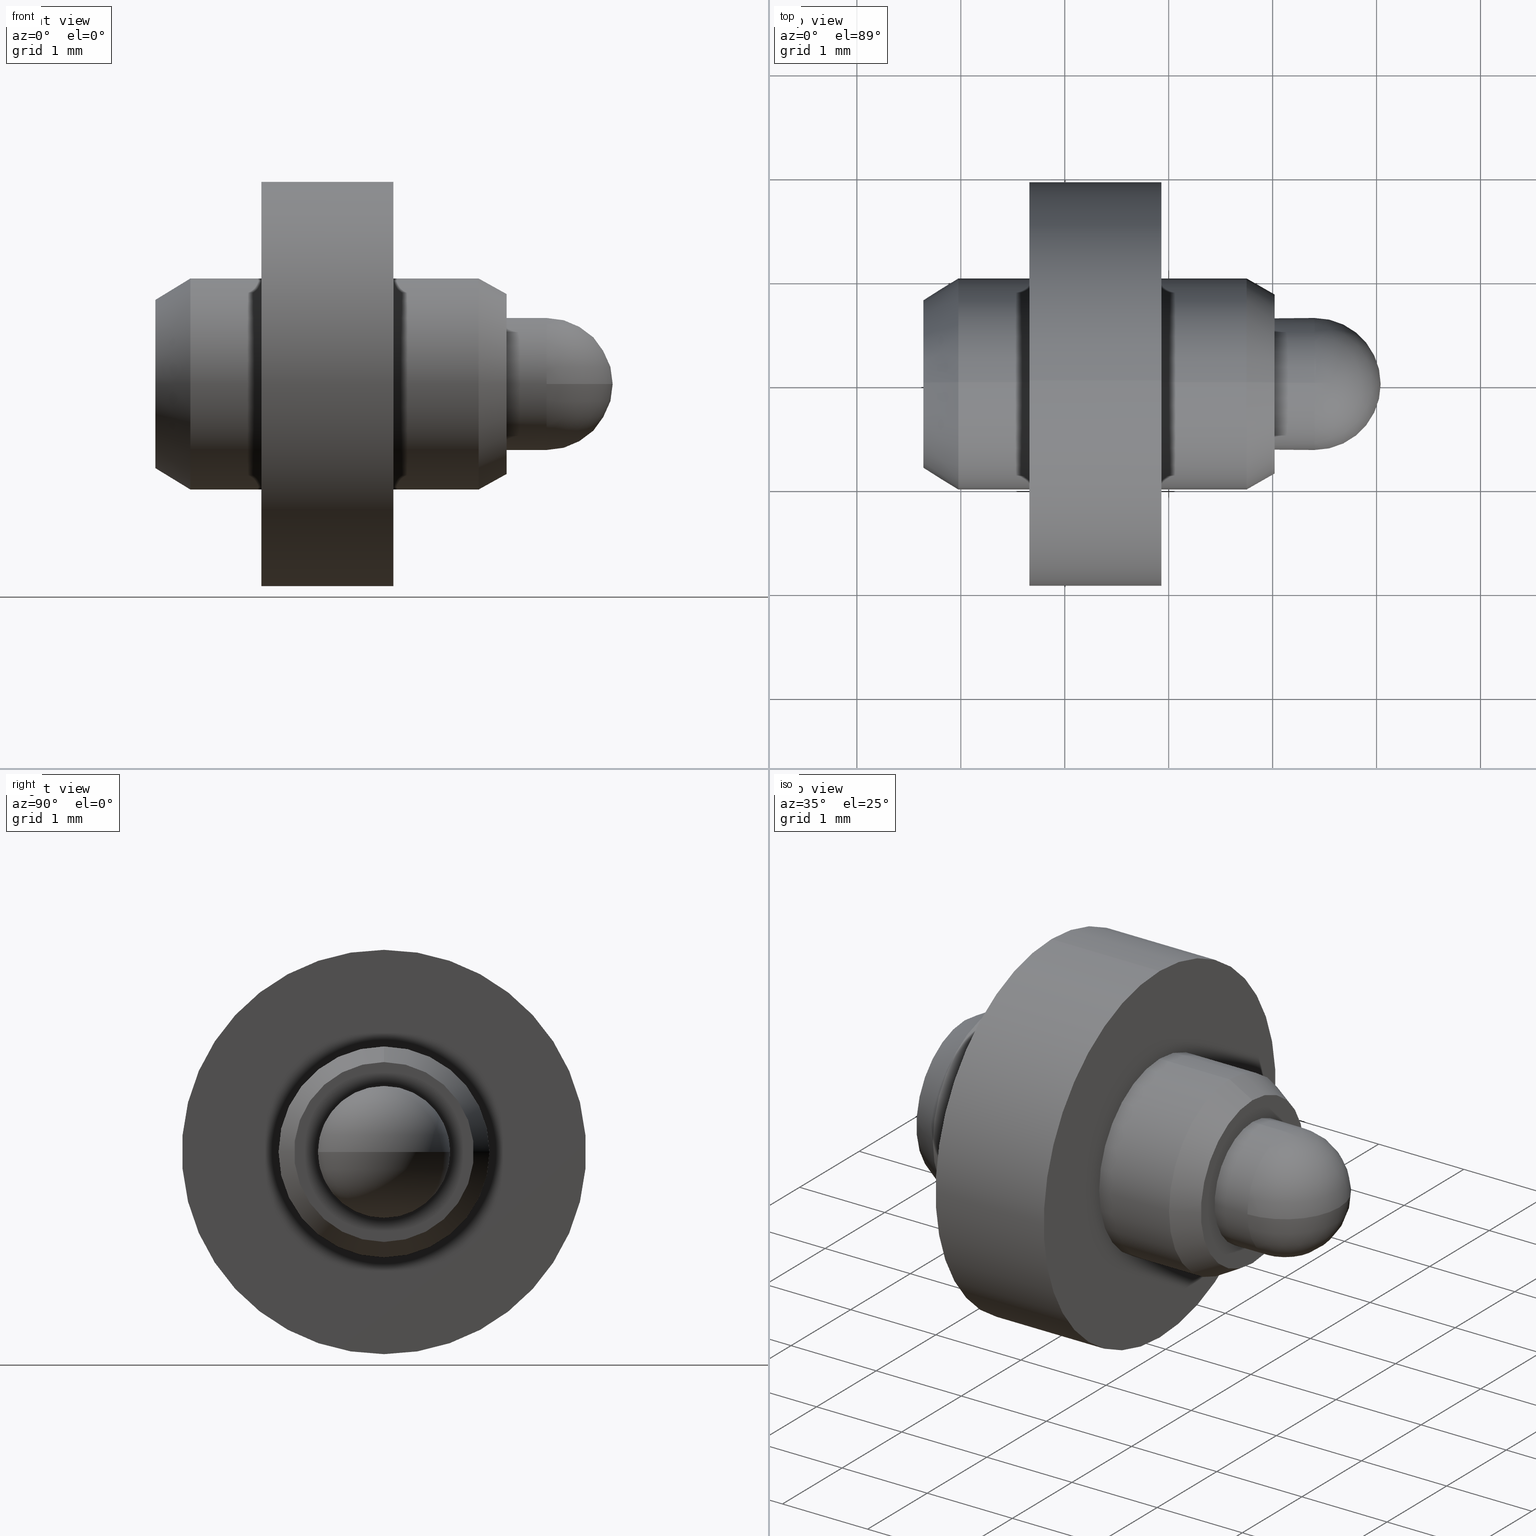
[diagram: canonical four-view strip — front | top / right | iso, engineering-drawing reading convention]
A machine part, canonical four-view strip (front | top / right | iso — engineering-drawing reading convention). The complete STEP part file that produces these views, byte-faithful:
ISO-10303-21;
HEADER;
FILE_DESCRIPTION (( 'STEP AP214' ),
    '1' );
FILE_NAME ('uebk-10872.STEP',
    '2017-06-22T13:26:44',
    ( '' ),
    ( '' ),
    'SwSTEP 2.0',
    'SolidWorks 2017',
    '' );
FILE_SCHEMA (( 'AUTOMOTIVE_DESIGN' ));
ENDSEC;

DATA;
#1 = AXIS2_PLACEMENT_3D ( 'NONE', #317, #440, #484 ) ;
#2 = VECTOR ( 'NONE', #39, 1000.000000000000000 ) ;
#3 = DIRECTION ( 'NONE',  ( -1.000000000000000000, -0.0000000000000000000, -0.0000000000000000000 ) ) ;
#4 = AXIS2_PLACEMENT_3D ( 'NONE', #273, #315, #193 ) ;
#5 = EDGE_LOOP ( 'NONE', ( #214, #494, #177, #218, #324 ) ) ;
#6 = SURFACE_STYLE_USAGE ( .BOTH. , #121 ) ;
#7 = EDGE_CURVE ( 'NONE', #245, #159, #203, .T. ) ;
#8 = ORIENTED_EDGE ( 'NONE', *, *, #442, .T. ) ;
#9 = CIRCLE ( 'NONE', #30, 0.6350000000000000100 ) ;
#10 = ORIENTED_EDGE ( 'NONE', *, *, #398, .F. ) ;
#11 = ORIENTED_EDGE ( 'NONE', *, *, #126, .F. ) ;
#12 = LINE ( 'NONE', #91, #451 ) ;
#13 = PRESENTATION_STYLE_ASSIGNMENT (( #296 ) ) ;
#14 = AXIS2_PLACEMENT_3D ( 'NONE', #42, #355, #357 ) ;
#15 = SURFACE_STYLE_FILL_AREA ( #120 ) ;
#16 = ORIENTED_EDGE ( 'NONE', *, *, #379, .T. ) ;
#17 = ADVANCED_FACE ( 'NONE', ( #362 ), #346, .T. ) ;
#18 =( NAMED_UNIT ( * ) PLANE_ANGLE_UNIT ( ) SI_UNIT ( $, .RADIAN. ) );
#19 = CYLINDRICAL_SURFACE ( 'NONE', #493, 1.014999999999999900 ) ;
#20 = DIRECTION ( 'NONE',  ( -1.000000000000000000, -0.0000000000000000000, -0.0000000000000000000 ) ) ;
#21 = ORIENTED_EDGE ( 'NONE', *, *, #470, .F. ) ;
#22 = ORIENTED_EDGE ( 'NONE', *, *, #413, .T. ) ;
#23 = DIRECTION ( 'NONE',  ( -1.000000000000000000, -0.0000000000000000000, -0.0000000000000000000 ) ) ;
#24 = ADVANCED_FACE ( 'NONE', ( #449 ), #216, .T. ) ;
#25 = VECTOR ( 'NONE', #319, 1000.000000000000000 ) ;
#26 = APPLICATION_CONTEXT ( 'automotive_design' ) ;
#27 = ADVANCED_FACE ( 'NONE', ( #330 ), #161, .T. ) ;
#28 =( GEOMETRIC_REPRESENTATION_CONTEXT ( 3 ) GLOBAL_UNCERTAINTY_ASSIGNED_CONTEXT ( ( #502 ) ) GLOBAL_UNIT_ASSIGNED_CONTEXT ( ( #280, #44, #402 ) ) REPRESENTATION_CONTEXT ( 'NONE', 'WORKASPACE' ) );
#29 = APPLICATION_CONTEXT ( 'automotive_design' ) ;
#30 = AXIS2_PLACEMENT_3D ( 'NONE', #302, #520, #350 ) ;
#31 = DIRECTION ( 'NONE',  ( 0.0000000000000000000, 0.0000000000000000000, 1.000000000000000000 ) ) ;
#32 = CARTESIAN_POINT ( 'NONE',  ( -2.023764668175233300, 0.0000000000000000000, 0.0000000000000000000 ) ) ;
#33 = CARTESIAN_POINT ( 'NONE',  ( 1.019500637947216700, 1.059736027792783500E-016, -0.8653401360544222800 ) ) ;
#34 = ADVANCED_FACE ( 'NONE', ( #253 ), #19, .T. ) ;
#35 = DIRECTION ( 'NONE',  ( 1.000000000000000000, 0.0000000000000000000, 0.0000000000000000000 ) ) ;
#36 = EDGE_CURVE ( 'NONE', #459, #365, #460, .T. ) ;
#37 = EDGE_LOOP ( 'NONE', ( #487, #358, #496, #75 ) ) ;
#38 = ORIENTED_EDGE ( 'NONE', *, *, #442, .F. ) ;
#39 = DIRECTION ( 'NONE',  ( -1.000000000000000000, -0.0000000000000000000, -0.0000000000000000000 ) ) ;
#40 = CARTESIAN_POINT ( 'NONE',  ( 0.7501128828451774100, 0.0000000000000000000, 1.014999999999999900 ) ) ;
#41 = DIRECTION ( 'NONE',  ( -1.000000000000000000, -0.0000000000000000000, -0.0000000000000000000 ) ) ;
#42 = CARTESIAN_POINT ( 'NONE',  ( -1.340499362052783000, 0.0000000000000000000, 0.0000000000000000000 ) ) ;
#43 = EDGE_LOOP ( 'NONE', ( #385, #22, #11, #508 ) ) ;
#44 =( NAMED_UNIT ( * ) PLANE_ANGLE_UNIT ( ) SI_UNIT ( $, .RADIAN. ) );
#45 = COLOUR_RGB ( '',0.8274509803921568100, 0.6666666666666666300, 0.1294117647058823400 ) ;
#46 = ORIENTED_EDGE ( 'NONE', *, *, #498, .T. ) ;
#47 = ORIENTED_EDGE ( 'NONE', *, *, #79, .T. ) ;
#48 = ORIENTED_EDGE ( 'NONE', *, *, #320, .T. ) ;
#49 = VERTEX_POINT ( 'NONE', #230 ) ;
#50 = EDGE_CURVE ( 'NONE', #323, #100, #152, .T. ) ;
#51 = CONICAL_SURFACE ( 'NONE', #294, 1.014999999999999900, 0.5485494024505289700 ) ;
#52 = ADVANCED_BREP_SHAPE_REPRESENTATION ( 'uebk-10872', ( #327, #291 ), #423 ) ;
#53 = MECHANICAL_DESIGN_GEOMETRIC_PRESENTATION_REPRESENTATION (  '', ( #239 ), #28 ) ;
#54 = AXIS2_PLACEMENT_3D ( 'NONE', #170, #260, #254 ) ;
#55 = ORIENTED_EDGE ( 'NONE', *, *, #69, .F. ) ;
#56 = FACE_OUTER_BOUND ( 'NONE', #84, .T. ) ;
#57 = ORIENTED_EDGE ( 'NONE', *, *, #426, .T. ) ;
#58 = EDGE_CURVE ( 'NONE', #166, #381, #9, .T. ) ;
#59 = EDGE_LOOP ( 'NONE', ( #46, #404, #244, #55, #448 ) ) ;
#60 = CARTESIAN_POINT ( 'NONE',  ( 0.7501128828451774100, 0.0000000000000000000, 0.0000000000000000000 ) ) ;
#61 = LINE ( 'NONE', #87, #221 ) ;
#62 = CARTESIAN_POINT ( 'NONE',  ( -1.340499362052783000, 0.0000000000000000000, 0.0000000000000000000 ) ) ;
#63 =( LENGTH_UNIT ( ) NAMED_UNIT ( * ) SI_UNIT ( .MILLI., .METRE. ) );
#64 = DIRECTION ( 'NONE',  ( 0.0000000000000000000, 1.000000000000000000, 1.224646799147353200E-016 ) ) ;
#65 = EDGE_LOOP ( 'NONE', ( #255, #361, #436, #454 ) ) ;
#66 = CYLINDRICAL_SURFACE ( 'NONE', #274, 1.014999999999999900 ) ;
#67 = DIRECTION ( 'NONE',  ( 0.0000000000000000000, 0.0000000000000000000, 1.000000000000000000 ) ) ;
#68 = CIRCLE ( 'NONE', #488, 1.014999999999999900 ) ;
#69 = EDGE_CURVE ( 'NONE', #411, #381, #416, .T. ) ;
#70 = DIRECTION ( 'NONE',  ( -1.000000000000000000, -0.0000000000000000000, -0.0000000000000000000 ) ) ;
#71 = DIRECTION ( 'NONE',  ( 0.0000000000000000000, 0.0000000000000000000, 1.000000000000000000 ) ) ;
#72 = CARTESIAN_POINT ( 'NONE',  ( -0.07049936205278306600, 0.0000000000000000000, 0.0000000000000000000 ) ) ;
#73 = AXIS2_PLACEMENT_3D ( 'NONE', #85, #168, #434 ) ;
#74 = CARTESIAN_POINT ( 'NONE',  ( -2.023764668175233300, 0.0000000000000000000, -1.014999999999999900 ) ) ;
#75 = ORIENTED_EDGE ( 'NONE', *, *, #243, .F. ) ;
#76 = CARTESIAN_POINT ( 'NONE',  ( -0.07049936205278306600, 2.381938024341601800E-016, -1.944999999999999800 ) ) ;
#77 = LINE ( 'NONE', #522, #382 ) ;
#78 = CARTESIAN_POINT ( 'NONE',  ( -0.07049936205278306600, 0.0000000000000000000, 1.014999999999999900 ) ) ;
#79 = EDGE_CURVE ( 'NONE', #365, #459, #521, .T. ) ;
#80 = CIRCLE ( 'NONE', #287, 0.6350000000000000100 ) ;
#81 = ORIENTED_EDGE ( 'NONE', *, *, #89, .F. ) ;
#82 = ORIENTED_EDGE ( 'NONE', *, *, #476, .F. ) ;
#83 = FACE_OUTER_BOUND ( 'NONE', #242, .T. ) ;
#84 = EDGE_LOOP ( 'NONE', ( #241, #57, #206, #345 ) ) ;
#85 = CARTESIAN_POINT ( 'NONE',  ( -2.360499362052783200, 0.0000000000000000000, 0.0000000000000000000 ) ) ;
#86 = DIRECTION ( 'NONE',  ( 0.0000000000000000000, 0.0000000000000000000, 1.000000000000000000 ) ) ;
#87 = CARTESIAN_POINT ( 'NONE',  ( -2.360499362052783200, 1.243016501134563300E-016, -1.014999999999999900 ) ) ;
#88 = DIRECTION ( 'NONE',  ( 1.000000000000000000, 0.0000000000000000000, 0.0000000000000000000 ) ) ;
#89 = EDGE_CURVE ( 'NONE', #477, #411, #191, .T. ) ;
#90 = FACE_BOUND ( 'NONE', #113, .T. ) ;
#91 = CARTESIAN_POINT ( 'NONE',  ( -2.360499362052783200, 0.0000000000000000000, 1.014999999999999900 ) ) ;
#92 = ORIENTED_EDGE ( 'NONE', *, *, #162, .T. ) ;
#93 =( NAMED_UNIT ( * ) PLANE_ANGLE_UNIT ( ) SI_UNIT ( $, .RADIAN. ) );
#94 = EDGE_LOOP ( 'NONE', ( #506, #420 ) ) ;
#95 = VECTOR ( 'NONE', #504, 1000.000000000000000 ) ;
#96 = AXIS2_PLACEMENT_3D ( 'NONE', #165, #204, #35 ) ;
#97 = FACE_BOUND ( 'NONE', #285, .T. ) ;
#98 = DIRECTION ( 'NONE',  ( 0.0000000000000000000, 0.0000000000000000000, 1.000000000000000000 ) ) ;
#99 = ADVANCED_FACE ( 'NONE', ( #137, #90 ), #112, .F. ) ;
#100 = VERTEX_POINT ( 'NONE', #228 ) ;
#101 = AXIS2_PLACEMENT_3D ( 'NONE', #275, #200, #314 ) ;
#102 = SURFACE_STYLE_FILL_AREA ( #225 ) ;
#103 = CARTESIAN_POINT ( 'NONE',  ( -2.023764668175233300, 0.0000000000000000000, 1.014999999999999900 ) ) ;
#104 = DIRECTION ( 'NONE',  ( 0.0000000000000000000, 0.0000000000000000000, 1.000000000000000000 ) ) ;
#105 = DIRECTION ( 'NONE',  ( -1.000000000000000000, -0.0000000000000000000, -0.0000000000000000000 ) ) ;
#106 = DIRECTION ( 'NONE',  ( -1.000000000000000000, -0.0000000000000000000, -0.0000000000000000000 ) ) ;
#107 = CARTESIAN_POINT ( 'NONE',  ( -2.023764668175233300, 0.0000000000000000000, 0.0000000000000000000 ) ) ;
#108 = CARTESIAN_POINT ( 'NONE',  ( 1.404500637947216700, 0.6350000000000001200, 0.0000000000000000000 ) ) ;
#109 = PRODUCT_DEFINITION_FORMATION_WITH_SPECIFIED_SOURCE ( 'ANY', '', #377, .NOT_KNOWN. ) ;
#110 = DIRECTION ( 'NONE',  ( -1.000000000000000000, 0.0000000000000000000, -0.0000000000000000000 ) ) ;
#111 = ORIENTED_EDGE ( 'NONE', *, *, #212, .T. ) ;
#112 = PLANE ( 'NONE',  #289 ) ;
#113 = EDGE_LOOP ( 'NONE', ( #526, #127 ) ) ;
#114 = DIRECTION ( 'NONE',  ( -1.000000000000000000, -0.0000000000000000000, -0.0000000000000000000 ) ) ;
#115 = VERTEX_POINT ( 'NONE', #344 ) ;
#116 = VECTOR ( 'NONE', #341, 1000.000000000000000 ) ;
#117 = CARTESIAN_POINT ( 'NONE',  ( 0.7501128828451774100, 0.0000000000000000000, 0.0000000000000000000 ) ) ;
#118 = CARTESIAN_POINT ( 'NONE',  ( 1.019500637947216700, 1.151376264463673400E-016, -0.8653401360544222800 ) ) ;
#119 = DIRECTION ( 'NONE',  ( 0.0000000000000000000, 0.0000000000000000000, 1.000000000000000000 ) ) ;
#120 = FILL_AREA_STYLE ('',( #399 ) ) ;
#121 = SURFACE_SIDE_STYLE ('',( #15 ) ) ;
#122 = VECTOR ( 'NONE', #277, 1000.000000000000000 ) ;
#123 = ORIENTED_EDGE ( 'NONE', *, *, #36, .T. ) ;
#124 = CARTESIAN_POINT ( 'NONE',  ( -1.340499362052783000, 1.243016501134563300E-016, -1.014999999999999900 ) ) ;
#125 = VERTEX_POINT ( 'NONE', #384 ) ;
#126 = EDGE_CURVE ( 'NONE', #235, #49, #167, .T. ) ;
#127 = ORIENTED_EDGE ( 'NONE', *, *, #354, .T. ) ;
#128 = FACE_OUTER_BOUND ( 'NONE', #37, .T. ) ;
#129 = CYLINDRICAL_SURFACE ( 'NONE', #453, 0.6350000000000001200 ) ;
#130 = AXIS2_PLACEMENT_3D ( 'NONE', #247, #202, #322 ) ;
#131 = EDGE_CURVE ( 'NONE', #125, #276, #495, .T. ) ;
#132 = EDGE_LOOP ( 'NONE', ( #174, #406, #16, #293 ) ) ;
#133 = FACE_OUTER_BOUND ( 'NONE', #310, .T. ) ;
#134 = EDGE_CURVE ( 'NONE', #100, #323, #208, .T. ) ;
#135 = VERTEX_POINT ( 'NONE', #108 ) ;
#136 = CARTESIAN_POINT ( 'NONE',  ( -2.360499362052783200, 0.0000000000000000000, 0.0000000000000000000 ) ) ;
#137 = FACE_OUTER_BOUND ( 'NONE', #94, .T. ) ;
#138 = DIRECTION ( 'NONE',  ( 0.0000000000000000000, 1.000000000000000000, 0.0000000000000000000 ) ) ;
#139 = PRESENTATION_LAYER_ASSIGNMENT (  '', '', ( #215 ) ) ;
#140 = ORIENTED_EDGE ( 'NONE', *, *, #131, .T. ) ;
#141 = FACE_OUTER_BOUND ( 'NONE', #249, .T. ) ;
#142 = DIRECTION ( 'NONE',  ( -1.000000000000000000, -0.0000000000000000000, -0.0000000000000000000 ) ) ;
#143 = CARTESIAN_POINT ( 'NONE',  ( 1.404500637947216700, 0.0000000000000000000, 0.0000000000000000000 ) ) ;
#144 = DIRECTION ( 'NONE',  ( 0.0000000000000000000, 0.0000000000000000000, 1.000000000000000000 ) ) ;
#145 = UNCERTAINTY_MEASURE_WITH_UNIT (LENGTH_MEASURE( 1.000000000000000100E-005 ), #256, 'distance_accuracy_value', 'NONE');
#146 = CARTESIAN_POINT ( 'NONE',  ( 1.404500637947216700, 0.0000000000000000000, 0.0000000000000000000 ) ) ;
#147 = CARTESIAN_POINT ( 'NONE',  ( -1.340499362052783000, 1.944999999999999800, 0.0000000000000000000 ) ) ;
#148 = ORIENTED_EDGE ( 'NONE', *, *, #368, .T. ) ;
#149 = DIRECTION ( 'NONE',  ( 0.0000000000000000000, 0.0000000000000000000, -1.000000000000000000 ) ) ;
#150 = ORIENTED_EDGE ( 'NONE', *, *, #243, .T. ) ;
#151 = DIRECTION ( 'NONE',  ( 0.0000000000000000000, 0.0000000000000000000, -1.000000000000000000 ) ) ;
#152 = CIRCLE ( 'NONE', #456, 0.8092176870748299900 ) ;
#153 = CARTESIAN_POINT ( 'NONE',  ( 1.019500637947216700, 0.0000000000000000000, 0.0000000000000000000 ) ) ;
#154 = CYLINDRICAL_SURFACE ( 'NONE', #130, 1.014999999999999900 ) ;
#155 = CARTESIAN_POINT ( 'NONE',  ( -2.360499362052783200, 0.0000000000000000000, 1.944999999999999800 ) ) ;
#156 = AXIS2_PLACEMENT_3D ( 'NONE', #147, #424, #303 ) ;
#157 = CARTESIAN_POINT ( 'NONE',  ( 0.7501128828451774100, 1.243016501134563300E-016, -1.014999999999999900 ) ) ;
#158 = EDGE_CURVE ( 'NONE', #115, #405, #512, .T. ) ;
#159 = VERTEX_POINT ( 'NONE', #157 ) ;
#160 = ORIENTED_EDGE ( 'NONE', *, *, #134, .T. ) ;
#161 = CONICAL_SURFACE ( 'NONE', #54, 0.8653401360544222800, 0.5070985043923372800 ) ;
#162 = EDGE_CURVE ( 'NONE', #125, #332, #288, .T. ) ;
#163 = CARTESIAN_POINT ( 'NONE',  ( -1.340499362052783000, 0.0000000000000000000, 1.944999999999999800 ) ) ;
#164 = FACE_OUTER_BOUND ( 'NONE', #412, .T. ) ;
#165 = CARTESIAN_POINT ( 'NONE',  ( 1.404500637947216700, 0.0000000000000000000, 0.0000000000000000000 ) ) ;
#166 = VERTEX_POINT ( 'NONE', #238 ) ;
#167 = CIRCLE ( 'NONE', #265, 1.014999999999999900 ) ;
#168 = DIRECTION ( 'NONE',  ( -1.000000000000000000, -0.0000000000000000000, -0.0000000000000000000 ) ) ;
#169 = CARTESIAN_POINT ( 'NONE',  ( -0.07049936205278306600, 0.0000000000000000000, 0.0000000000000000000 ) ) ;
#170 = CARTESIAN_POINT ( 'NONE',  ( 1.019500637947216700, 0.0000000000000000000, 0.0000000000000000000 ) ) ;
#171 = FACE_OUTER_BOUND ( 'NONE', #472, .T. ) ;
#172 = DIRECTION ( 'NONE',  ( -1.000000000000000000, -0.0000000000000000000, -0.0000000000000000000 ) ) ;
#173 = DIRECTION ( 'NONE',  ( 0.0000000000000000000, 0.0000000000000000000, 1.000000000000000000 ) ) ;
#174 = ORIENTED_EDGE ( 'NONE', *, *, #413, .F. ) ;
#175 = DIRECTION ( 'NONE',  ( 0.0000000000000000000, 0.0000000000000000000, -1.000000000000000000 ) ) ;
#176 = ORIENTED_EDGE ( 'NONE', *, *, #162, .F. ) ;
#177 = ORIENTED_EDGE ( 'NONE', *, *, #89, .T. ) ;
#178 = DIRECTION ( 'NONE',  ( 0.0000000000000000000, 0.0000000000000000000, 1.000000000000000000 ) ) ;
#179 = ORIENTED_EDGE ( 'NONE', *, *, #426, .F. ) ;
#180 = AXIS2_PLACEMENT_3D ( 'NONE', #197, #396, #359 ) ;
#181 = DIRECTION ( 'NONE',  ( 0.0000000000000000000, 0.0000000000000000000, 1.000000000000000000 ) ) ;
#182 = CIRCLE ( 'NONE', #4, 0.6350000000000001200 ) ;
#183 = AXIS2_PLACEMENT_3D ( 'NONE', #32, #106, #430 ) ;
#184 = PLANE ( 'NONE',  #156 ) ;
#185 = DIRECTION ( 'NONE',  ( -1.000000000000000000, -0.0000000000000000000, -0.0000000000000000000 ) ) ;
#186 = EDGE_CURVE ( 'NONE', #411, #135, #182, .T. ) ;
#187 = DIRECTION ( 'NONE',  ( 0.0000000000000000000, 0.0000000000000000000, 1.000000000000000000 ) ) ;
#188 = ADVANCED_FACE ( 'NONE', ( #395 ), #66, .T. ) ;
#189 = DIRECTION ( 'NONE',  ( -1.000000000000000000, -0.0000000000000000000, -0.0000000000000000000 ) ) ;
#190 = CIRCLE ( 'NONE', #366, 1.014999999999999900 ) ;
#191 = CIRCLE ( 'NONE', #490, 0.6350000000000001200 ) ;
#192 = ORIENTED_EDGE ( 'NONE', *, *, #210, .T. ) ;
#193 = DIRECTION ( 'NONE',  ( 0.0000000000000000000, 0.0000000000000000000, 1.000000000000000000 ) ) ;
#194 = DIRECTION ( 'NONE',  ( -1.000000000000000000, -0.0000000000000000000, -0.0000000000000000000 ) ) ;
#195 = VERTEX_POINT ( 'NONE', #444 ) ;
#196 = DIRECTION ( 'NONE',  ( 0.0000000000000000000, 0.0000000000000000000, 1.000000000000000000 ) ) ;
#197 = CARTESIAN_POINT ( 'NONE',  ( -0.07049936205278306600, 0.0000000000000000000, 0.0000000000000000000 ) ) ;
#198 = PLANE ( 'NONE',  #328 ) ;
#199 = VECTOR ( 'NONE', #194, 1000.000000000000000 ) ;
#200 = DIRECTION ( 'NONE',  ( -1.000000000000000000, -0.0000000000000000000, -0.0000000000000000000 ) ) ;
#201 = CARTESIAN_POINT ( 'NONE',  ( -1.340499362052783000, 0.0000000000000000000, 1.014999999999999900 ) ) ;
#202 = DIRECTION ( 'NONE',  ( -1.000000000000000000, -0.0000000000000000000, -0.0000000000000000000 ) ) ;
#203 = CIRCLE ( 'NONE', #222, 1.014999999999999900 ) ;
#204 = DIRECTION ( 'NONE',  ( -0.0000000000000000000, 0.0000000000000000000, 1.000000000000000000 ) ) ;
#205 = ORIENTED_EDGE ( 'NONE', *, *, #290, .T. ) ;
#206 = ORIENTED_EDGE ( 'NONE', *, *, #400, .T. ) ;
#207 = LINE ( 'NONE', #338, #95 ) ;
#208 = CIRCLE ( 'NONE', #516, 0.8092176870748299900 ) ;
#209 = AXIS2_PLACEMENT_3D ( 'NONE', #62, #23, #98 ) ;
#210 = EDGE_CURVE ( 'NONE', #100, #459, #77, .T. ) ;
#211 = ORIENTED_EDGE ( 'NONE', *, *, #212, .F. ) ;
#212 = EDGE_CURVE ( 'NONE', #276, #195, #279, .T. ) ;
#213 = ADVANCED_FACE ( 'NONE', ( #83, #97 ), #198, .F. ) ;
#214 = ORIENTED_EDGE ( 'NONE', *, *, #462, .F. ) ;
#215 = STYLED_ITEM ( 'NONE', ( #13 ), #52 ) ;
#216 = SPHERICAL_SURFACE ( 'NONE', #298, 0.6350000000000001200 ) ;
#217 = CARTESIAN_POINT ( 'NONE',  ( 1.404500637947216700, 0.0000000000000000000, 0.0000000000000000000 ) ) ;
#218 = ORIENTED_EDGE ( 'NONE', *, *, #69, .T. ) ;
#219 = VERTEX_POINT ( 'NONE', #445 ) ;
#220 = DIRECTION ( 'NONE',  ( -1.000000000000000000, -0.0000000000000000000, -0.0000000000000000000 ) ) ;
#221 = VECTOR ( 'NONE', #461, 1000.000000000000000 ) ;
#222 = AXIS2_PLACEMENT_3D ( 'NONE', #60, #372, #173 ) ;
#223 = APPLICATION_PROTOCOL_DEFINITION ( 'draft international standard', 'automotive_design', 1998, #26 ) ;
#224 = CARTESIAN_POINT ( 'NONE',  ( -2.360499362052783200, 0.0000000000000000000, 0.0000000000000000000 ) ) ;
#225 = FILL_AREA_STYLE ('',( #509 ) ) ;
#226 = CARTESIAN_POINT ( 'NONE',  ( -2.360499362052783200, 0.0000000000000000000, 0.6350000000000001200 ) ) ;
#227 = DIRECTION ( 'NONE',  ( -1.000000000000000000, -0.0000000000000000000, -0.0000000000000000000 ) ) ;
#228 = CARTESIAN_POINT ( 'NONE',  ( -2.360499362052783200, 1.117011175712089100E-016, 0.8092176870748299900 ) ) ;
#229 = LINE ( 'NONE', #74, #122 ) ;
#230 = CARTESIAN_POINT ( 'NONE',  ( -0.07049936205278306600, 1.243016501134563300E-016, -1.014999999999999900 ) ) ;
#231 = ORIENTED_EDGE ( 'NONE', *, *, #58, .T. ) ;
#232 = EDGE_LOOP ( 'NONE', ( #450, #390, #150, #311 ) ) ;
#233 = DIRECTION ( 'NONE',  ( -1.000000000000000000, -0.0000000000000000000, -0.0000000000000000000 ) ) ;
#234 = EDGE_LOOP ( 'NONE', ( #10, #148, #21, #286 ) ) ;
#235 = VERTEX_POINT ( 'NONE', #78 ) ;
#236 = CIRCLE ( 'NONE', #96, 0.6350000000000001200 ) ;
#237 = DIRECTION ( 'NONE',  ( -1.000000000000000000, -0.0000000000000000000, -0.0000000000000000000 ) ) ;
#238 = CARTESIAN_POINT ( 'NONE',  ( 1.019500637947216700, 7.776507174585692900E-017, -0.6350000000000000100 ) ) ;
#239 = STYLED_ITEM ( 'NONE', ( #474 ), #327 ) ;
#240 = DIRECTION ( 'NONE',  ( -1.000000000000000000, -0.0000000000000000000, -0.0000000000000000000 ) ) ;
#241 = ORIENTED_EDGE ( 'NONE', *, *, #446, .F. ) ;
#242 = EDGE_LOOP ( 'NONE', ( #263, #179 ) ) ;
#243 = EDGE_CURVE ( 'NONE', #284, #459, #410, .T. ) ;
#244 = ORIENTED_EDGE ( 'NONE', *, *, #347, .F. ) ;
#245 = VERTEX_POINT ( 'NONE', #40 ) ;
#246 = DIRECTION ( 'NONE',  ( 0.0000000000000000000, 0.0000000000000000000, 1.000000000000000000 ) ) ;
#247 = CARTESIAN_POINT ( 'NONE',  ( -2.360499362052783200, 0.0000000000000000000, 0.0000000000000000000 ) ) ;
#248 = AXIS2_PLACEMENT_3D ( 'NONE', #352, #114, #71 ) ;
#249 = EDGE_LOOP ( 'NONE', ( #304, #295, #252, #47 ) ) ;
#250 = CIRCLE ( 'NONE', #209, 1.014999999999999900 ) ;
#251 = PRODUCT_RELATED_PRODUCT_CATEGORY ( 'part', '', ( #377 ) ) ;
#252 = ORIENTED_EDGE ( 'NONE', *, *, #269, .T. ) ;
#253 = FACE_OUTER_BOUND ( 'NONE', #132, .T. ) ;
#254 = DIRECTION ( 'NONE',  ( 0.0000000000000000000, 0.0000000000000000000, 1.000000000000000000 ) ) ;
#255 = ORIENTED_EDGE ( 'NONE', *, *, #158, .T. ) ;
#256 =( LENGTH_UNIT ( ) NAMED_UNIT ( * ) SI_UNIT ( .MILLI., .METRE. ) );
#257 = DIRECTION ( 'NONE',  ( 0.0000000000000000000, 0.0000000000000000000, 1.000000000000000000 ) ) ;
#258 = DIRECTION ( 'NONE',  ( -1.000000000000000000, -0.0000000000000000000, -0.0000000000000000000 ) ) ;
#259 = PRODUCT_CONTEXT ( 'NONE', #26, 'mechanical' ) ;
#260 = DIRECTION ( 'NONE',  ( -1.000000000000000000, -0.0000000000000000000, -0.0000000000000000000 ) ) ;
#261 = ADVANCED_FACE ( 'NONE', ( #56 ), #457, .T. ) ;
#262 = AXIS2_PLACEMENT_3D ( 'NONE', #501, #88, #175 ) ;
#263 = ORIENTED_EDGE ( 'NONE', *, *, #158, .F. ) ;
#264 = CARTESIAN_POINT ( 'NONE',  ( -2.360499362052783200, 0.0000000000000000000, 0.0000000000000000000 ) ) ;
#265 = AXIS2_PLACEMENT_3D ( 'NONE', #432, #189, #480 ) ;
#266 = CARTESIAN_POINT ( 'NONE',  ( -0.07049936205278295500, 1.014999999999999900, 0.0000000000000000000 ) ) ;
#267 = DIRECTION ( 'NONE',  ( -1.000000000000000000, -0.0000000000000000000, -0.0000000000000000000 ) ) ;
#268 = ADVANCED_FACE ( 'NONE', ( #133 ), #447, .T. ) ;
#269 = EDGE_CURVE ( 'NONE', #323, #365, #229, .T. ) ;
#270 = FACE_OUTER_BOUND ( 'NONE', #510, .T. ) ;
#271 = DIRECTION ( 'NONE',  ( 0.8532818336519585300, 6.385920849931684000E-017, 0.5214500094539756800 ) ) ;
#272 = AXIS2_PLACEMENT_3D ( 'NONE', #153, #497, #246 ) ;
#273 = CARTESIAN_POINT ( 'NONE',  ( 1.404500637947216700, 0.0000000000000000000, 0.0000000000000000000 ) ) ;
#274 = AXIS2_PLACEMENT_3D ( 'NONE', #313, #3, #485 ) ;
#275 = CARTESIAN_POINT ( 'NONE',  ( 1.019500637947216700, 0.0000000000000000000, 0.0000000000000000000 ) ) ;
#276 = VERTEX_POINT ( 'NONE', #76 ) ;
#277 = DIRECTION ( 'NONE',  ( 0.8532818336519585300, 0.0000000000000000000, -0.5214500094539756800 ) ) ;
#278 = CARTESIAN_POINT ( 'NONE',  ( 1.019500637947216700, 0.0000000000000000000, 0.8653401360544222800 ) ) ;
#279 = LINE ( 'NONE', #441, #301 ) ;
#280 =( LENGTH_UNIT ( ) NAMED_UNIT ( * ) SI_UNIT ( .MILLI., .METRE. ) );
#281 = LINE ( 'NONE', #473, #491 ) ;
#282 = VERTEX_POINT ( 'NONE', #486 ) ;
#283 = CYLINDRICAL_SURFACE ( 'NONE', #353, 0.6350000000000001200 ) ;
#284 = VERTEX_POINT ( 'NONE', #201 ) ;
#285 = EDGE_LOOP ( 'NONE', ( #479, #231 ) ) ;
#286 = ORIENTED_EDGE ( 'NONE', *, *, #498, .F. ) ;
#287 = AXIS2_PLACEMENT_3D ( 'NONE', #475, #185, #67 ) ;
#288 = LINE ( 'NONE', #155, #2 ) ;
#289 = AXIS2_PLACEMENT_3D ( 'NONE', #266, #110, #306 ) ;
#290 = EDGE_CURVE ( 'NONE', #276, #125, #360, .T. ) ;
#291 = AXIS2_PLACEMENT_3D ( 'NONE', #370, #178, #468 ) ;
#292 = CIRCLE ( 'NONE', #337, 0.6350000000000001200 ) ;
#293 = ORIENTED_EDGE ( 'NONE', *, *, #354, .F. ) ;
#294 = AXIS2_PLACEMENT_3D ( 'NONE', #107, #386, #151 ) ;
#295 = ORIENTED_EDGE ( 'NONE', *, *, #50, .F. ) ;
#296 = SURFACE_STYLE_USAGE ( .BOTH. , #415 ) ;
#297 = DIRECTION ( 'NONE',  ( 0.0000000000000000000, 1.224646799147353200E-016, -1.000000000000000000 ) ) ;
#298 = AXIS2_PLACEMENT_3D ( 'NONE', #499, #414, #138 ) ;
#299 = ORIENTED_EDGE ( 'NONE', *, *, #50, .T. ) ;
#300 = APPLICATION_PROTOCOL_DEFINITION ( 'draft international standard', 'automotive_design', 1998, #29 ) ;
#301 = VECTOR ( 'NONE', #309, 1000.000000000000000 ) ;
#302 = CARTESIAN_POINT ( 'NONE',  ( 1.019500637947216700, 0.0000000000000000000, 0.0000000000000000000 ) ) ;
#303 = DIRECTION ( 'NONE',  ( 0.0000000000000000000, 0.0000000000000000000, -1.000000000000000000 ) ) ;
#304 = ORIENTED_EDGE ( 'NONE', *, *, #210, .F. ) ;
#305 = MECHANICAL_DESIGN_GEOMETRIC_PRESENTATION_REPRESENTATION (  '', ( #215 ), #435 ) ;
#306 = DIRECTION ( 'NONE',  ( -0.0000000000000000000, 0.0000000000000000000, 1.000000000000000000 ) ) ;
#307 = ORIENTED_EDGE ( 'NONE', *, *, #320, .F. ) ;
#308 = UNCERTAINTY_MEASURE_WITH_UNIT (LENGTH_MEASURE( 1.000000000000000100E-005 ), #63, 'distance_accuracy_value', 'NONE');
#309 = DIRECTION ( 'NONE',  ( -1.000000000000000000, -0.0000000000000000000, -0.0000000000000000000 ) ) ;
#310 = EDGE_LOOP ( 'NONE', ( #438, #492, #523, #81 ) ) ;
#311 = ORIENTED_EDGE ( 'NONE', *, *, #79, .F. ) ;
#312 = CYLINDRICAL_SURFACE ( 'NONE', #73, 1.944999999999999800 ) ;
#313 = CARTESIAN_POINT ( 'NONE',  ( -2.360499362052783200, 0.0000000000000000000, 0.0000000000000000000 ) ) ;
#314 = DIRECTION ( 'NONE',  ( 0.0000000000000000000, 0.0000000000000000000, 1.000000000000000000 ) ) ;
#315 = DIRECTION ( 'NONE',  ( -1.000000000000000000, -0.0000000000000000000, -0.0000000000000000000 ) ) ;
#316 = AXIS2_PLACEMENT_3D ( 'NONE', #143, #297, #64 ) ;
#317 = CARTESIAN_POINT ( 'NONE',  ( 1.404500637947216700, 0.0000000000000000000, 0.0000000000000000000 ) ) ;
#318 = AXIS2_PLACEMENT_3D ( 'NONE', #428, #267, #104 ) ;
#319 = DIRECTION ( 'NONE',  ( -0.8741572761215376000, 0.0000000000000000000, 0.4856429311786323900 ) ) ;
#320 = EDGE_CURVE ( 'NONE', #195, #332, #342, .T. ) ;
#321 = EDGE_LOOP ( 'NONE', ( #299, #160 ) ) ;
#322 = DIRECTION ( 'NONE',  ( 0.0000000000000000000, 0.0000000000000000000, 1.000000000000000000 ) ) ;
#323 = VERTEX_POINT ( 'NONE', #443 ) ;
#324 = ORIENTED_EDGE ( 'NONE', *, *, #58, .F. ) ;
#325 = AXIS2_PLACEMENT_3D ( 'NONE', #387, #227, #383 ) ;
#326 = FACE_BOUND ( 'NONE', #418, .T. ) ;
#327 = MANIFOLD_SOLID_BREP ( 'Rotation1', #408 ) ;
#328 = AXIS2_PLACEMENT_3D ( 'NONE', #389, #391, #356 ) ;
#329 = ORIENTED_EDGE ( 'NONE', *, *, #269, .F. ) ;
#330 = FACE_OUTER_BOUND ( 'NONE', #65, .T. ) ;
#331 =( NAMED_UNIT ( * ) SI_UNIT ( $, .STERADIAN. ) SOLID_ANGLE_UNIT ( ) );
#332 = VERTEX_POINT ( 'NONE', #163 ) ;
#333 = CARTESIAN_POINT ( 'NONE',  ( -2.360499362052783200, 0.0000000000000000000, 0.0000000000000000000 ) ) ;
#334 = LINE ( 'NONE', #33, #116 ) ;
#335 = DIRECTION ( 'NONE',  ( 0.0000000000000000000, 0.0000000000000000000, 1.000000000000000000 ) ) ;
#336 = CARTESIAN_POINT ( 'NONE',  ( -2.360499362052783200, 0.0000000000000000000, 0.0000000000000000000 ) ) ;
#337 = AXIS2_PLACEMENT_3D ( 'NONE', #146, #471, #335 ) ;
#338 = CARTESIAN_POINT ( 'NONE',  ( -2.360499362052783200, 7.776507174585694100E-017, -0.6350000000000001200 ) ) ;
#339 = AXIS2_PLACEMENT_3D ( 'NONE', #72, #237, #196 ) ;
#340 = VERTEX_POINT ( 'NONE', #124 ) ;
#341 = DIRECTION ( 'NONE',  ( -0.8741572761215376000, 5.947410611964504500E-017, -0.4856429311786323900 ) ) ;
#342 = CIRCLE ( 'NONE', #14, 1.944999999999999800 ) ;
#343 = ADVANCED_FACE ( 'NONE', ( #128 ), #154, .T. ) ;
#344 = CARTESIAN_POINT ( 'NONE',  ( 1.019500637947216700, 0.0000000000000000000, 0.8653401360544222800 ) ) ;
#345 = ORIENTED_EDGE ( 'NONE', *, *, #371, .F. ) ;
#346 = CYLINDRICAL_SURFACE ( 'NONE', #409, 1.944999999999999800 ) ;
#347 = EDGE_CURVE ( 'NONE', #381, #166, #80, .T. ) ;
#348 = DIRECTION ( 'NONE',  ( 0.0000000000000000000, 0.0000000000000000000, 1.000000000000000000 ) ) ;
#349 = ADVANCED_FACE ( 'NONE', ( #141 ), #51, .T. ) ;
#350 = DIRECTION ( 'NONE',  ( 0.0000000000000000000, 0.0000000000000000000, 1.000000000000000000 ) ) ;
#351 = CIRCLE ( 'NONE', #325, 1.944999999999999800 ) ;
#352 = CARTESIAN_POINT ( 'NONE',  ( 1.019500637947216700, 0.0000000000000000000, 0.0000000000000000000 ) ) ;
#353 = AXIS2_PLACEMENT_3D ( 'NONE', #333, #172, #257 ) ;
#354 = EDGE_CURVE ( 'NONE', #49, #235, #481, .T. ) ;
#355 = DIRECTION ( 'NONE',  ( -1.000000000000000000, -0.0000000000000000000, -0.0000000000000000000 ) ) ;
#356 = DIRECTION ( 'NONE',  ( -0.0000000000000000000, 0.0000000000000000000, 1.000000000000000000 ) ) ;
#357 = DIRECTION ( 'NONE',  ( 0.0000000000000000000, 0.0000000000000000000, 1.000000000000000000 ) ) ;
#358 = ORIENTED_EDGE ( 'NONE', *, *, #431, .T. ) ;
#359 = DIRECTION ( 'NONE',  ( 0.0000000000000000000, 0.0000000000000000000, 1.000000000000000000 ) ) ;
#360 = CIRCLE ( 'NONE', #180, 1.944999999999999800 ) ;
#361 = ORIENTED_EDGE ( 'NONE', *, *, #446, .T. ) ;
#362 = FACE_OUTER_BOUND ( 'NONE', #378, .T. ) ;
#363 = CARTESIAN_POINT ( 'NONE',  ( 1.019500637947216700, 0.0000000000000000000, 0.6350000000000000100 ) ) ;
#364 = FACE_OUTER_BOUND ( 'NONE', #59, .T. ) ;
#365 = VERTEX_POINT ( 'NONE', #367 ) ;
#366 = AXIS2_PLACEMENT_3D ( 'NONE', #465, #258, #144 ) ;
#367 = CARTESIAN_POINT ( 'NONE',  ( -2.023764668175233300, 1.243016501134563300E-016, -1.014999999999999900 ) ) ;
#368 = EDGE_CURVE ( 'NONE', #219, #477, #500, .T. ) ;
#369 = COLOUR_RGB ( '',0.8274509803921568100, 0.6666666666666666300, 0.1294117647058823400 ) ;
#370 = CARTESIAN_POINT ( 'NONE',  ( 0.0000000000000000000, 0.0000000000000000000, 0.0000000000000000000 ) ) ;
#371 = EDGE_CURVE ( 'NONE', #159, #245, #68, .T. ) ;
#372 = DIRECTION ( 'NONE',  ( -1.000000000000000000, -0.0000000000000000000, -0.0000000000000000000 ) ) ;
#373 = LINE ( 'NONE', #278, #25 ) ;
#374 = ADVANCED_FACE ( 'NONE', ( #270 ), #312, .T. ) ;
#375 = PRESENTATION_LAYER_ASSIGNMENT (  '', '', ( #239 ) ) ;
#376 =( NAMED_UNIT ( * ) SI_UNIT ( $, .STERADIAN. ) SOLID_ANGLE_UNIT ( ) );
#377 = PRODUCT ( 'uebk-10872', 'uebk-10872', '', ( #259 ) ) ;
#378 = EDGE_LOOP ( 'NONE', ( #211, #205, #92, #307 ) ) ;
#379 = EDGE_CURVE ( 'NONE', #245, #235, #12, .T. ) ;
#380 = CARTESIAN_POINT ( 'NONE',  ( 1.404500637947216700, -0.6350000000000001200, -7.776507174585694100E-017 ) ) ;
#381 = VERTEX_POINT ( 'NONE', #363 ) ;
#382 = VECTOR ( 'NONE', #271, 1000.000000000000000 ) ;
#383 = DIRECTION ( 'NONE',  ( 0.0000000000000000000, 0.0000000000000000000, 1.000000000000000000 ) ) ;
#384 = CARTESIAN_POINT ( 'NONE',  ( -0.07049936205278306600, 0.0000000000000000000, 1.944999999999999800 ) ) ;
#385 = ORIENTED_EDGE ( 'NONE', *, *, #7, .T. ) ;
#386 = DIRECTION ( 'NONE',  ( 1.000000000000000000, 0.0000000000000000000, 0.0000000000000000000 ) ) ;
#387 = CARTESIAN_POINT ( 'NONE',  ( -1.340499362052783000, 0.0000000000000000000, 0.0000000000000000000 ) ) ;
#388 = CIRCLE ( 'NONE', #272, 0.8653401360544222800 ) ;
#389 = CARTESIAN_POINT ( 'NONE',  ( 1.019500637947216700, 0.6350000000000000100, 0.0000000000000000000 ) ) ;
#390 = ORIENTED_EDGE ( 'NONE', *, *, #476, .T. ) ;
#391 = DIRECTION ( 'NONE',  ( -1.000000000000000000, 0.0000000000000000000, -0.0000000000000000000 ) ) ;
#392 = ORIENTED_EDGE ( 'NONE', *, *, #134, .F. ) ;
#393 = CARTESIAN_POINT ( 'NONE',  ( -2.360499362052783200, 0.0000000000000000000, 1.014999999999999900 ) ) ;
#394 = PRODUCT_DEFINITION_SHAPE ( 'NONE', 'NONE',  #403 ) ;
#395 = FACE_OUTER_BOUND ( 'NONE', #232, .T. ) ;
#396 = DIRECTION ( 'NONE',  ( -1.000000000000000000, -0.0000000000000000000, -0.0000000000000000000 ) ) ;
#397 = FACE_OUTER_BOUND ( 'NONE', #5, .T. ) ;
#398 = EDGE_CURVE ( 'NONE', #219, #135, #236, .T. ) ;
#399 = FILL_AREA_STYLE_COLOUR ( '', #45 ) ;
#400 = EDGE_CURVE ( 'NONE', #115, #245, #373, .T. ) ;
#401 = CYLINDRICAL_SURFACE ( 'NONE', #407, 1.014999999999999900 ) ;
#402 =( NAMED_UNIT ( * ) SI_UNIT ( $, .STERADIAN. ) SOLID_ANGLE_UNIT ( ) );
#403 = PRODUCT_DEFINITION ( 'UNKNOWN', '', #109, #524 ) ;
#404 = ORIENTED_EDGE ( 'NONE', *, *, #462, .T. ) ;
#405 = VERTEX_POINT ( 'NONE', #118 ) ;
#406 = ORIENTED_EDGE ( 'NONE', *, *, #371, .T. ) ;
#407 = AXIS2_PLACEMENT_3D ( 'NONE', #464, #419, #86 ) ;
#408 = CLOSED_SHELL ( 'NONE', ( #427, #343, #374, #517, #27, #511, #24, #478, #268, #518, #213, #261, #34, #99, #17, #429, #188, #349 ) ) ;
#409 = AXIS2_PLACEMENT_3D ( 'NONE', #336, #469, #422 ) ;
#410 = LINE ( 'NONE', #393, #199 ) ;
#411 = VERTEX_POINT ( 'NONE', #482 ) ;
#412 = EDGE_LOOP ( 'NONE', ( #8, #48 ) ) ;
#413 = EDGE_CURVE ( 'NONE', #159, #49, #61, .T. ) ;
#414 = DIRECTION ( 'NONE',  ( -0.0000000000000000000, 0.0000000000000000000, -1.000000000000000000 ) ) ;
#415 = SURFACE_SIDE_STYLE ('',( #102 ) ) ;
#416 = LINE ( 'NONE', #226, #433 ) ;
#417 = DIRECTION ( 'NONE',  ( 0.0000000000000000000, 0.0000000000000000000, 1.000000000000000000 ) ) ;
#418 = EDGE_LOOP ( 'NONE', ( #463, #82 ) ) ;
#419 = DIRECTION ( 'NONE',  ( -1.000000000000000000, -0.0000000000000000000, -0.0000000000000000000 ) ) ;
#420 = ORIENTED_EDGE ( 'NONE', *, *, #290, .F. ) ;
#421 = CIRCLE ( 'NONE', #514, 0.6350000000000001200 ) ;
#422 = DIRECTION ( 'NONE',  ( 0.0000000000000000000, 0.0000000000000000000, 1.000000000000000000 ) ) ;
#423 =( GEOMETRIC_REPRESENTATION_CONTEXT ( 3 ) GLOBAL_UNCERTAINTY_ASSIGNED_CONTEXT ( ( #145 ) ) GLOBAL_UNIT_ASSIGNED_CONTEXT ( ( #256, #18, #331 ) ) REPRESENTATION_CONTEXT ( 'NONE', 'WORKASPACE' ) );
#424 = DIRECTION ( 'NONE',  ( 1.000000000000000000, 0.0000000000000000000, 0.0000000000000000000 ) ) ;
#425 = CARTESIAN_POINT ( 'NONE',  ( 1.404500637947216700, 0.0000000000000000000, 0.0000000000000000000 ) ) ;
#426 = EDGE_CURVE ( 'NONE', #405, #115, #388, .T. ) ;
#427 = ADVANCED_FACE ( 'NONE', ( #171 ), #437, .T. ) ;
#428 = CARTESIAN_POINT ( 'NONE',  ( -2.023764668175233300, 0.0000000000000000000, 0.0000000000000000000 ) ) ;
#429 = ADVANCED_FACE ( 'NONE', ( #326, #164 ), #184, .F. ) ;
#430 = DIRECTION ( 'NONE',  ( 0.0000000000000000000, 0.0000000000000000000, 1.000000000000000000 ) ) ;
#431 = EDGE_CURVE ( 'NONE', #340, #365, #281, .T. ) ;
#432 = CARTESIAN_POINT ( 'NONE',  ( -0.07049936205278306600, 0.0000000000000000000, 0.0000000000000000000 ) ) ;
#433 = VECTOR ( 'NONE', #515, 1000.000000000000000 ) ;
#434 = DIRECTION ( 'NONE',  ( 0.0000000000000000000, 0.0000000000000000000, 1.000000000000000000 ) ) ;
#435 =( GEOMETRIC_REPRESENTATION_CONTEXT ( 3 ) GLOBAL_UNCERTAINTY_ASSIGNED_CONTEXT ( ( #308 ) ) GLOBAL_UNIT_ASSIGNED_CONTEXT ( ( #63, #93, #376 ) ) REPRESENTATION_CONTEXT ( 'NONE', 'WORKASPACE' ) );
#436 = ORIENTED_EDGE ( 'NONE', *, *, #7, .F. ) ;
#437 = CONICAL_SURFACE ( 'NONE', #439, 1.014999999999999900, 0.5485494024505289700 ) ;
#438 = ORIENTED_EDGE ( 'NONE', *, *, #368, .F. ) ;
#439 = AXIS2_PLACEMENT_3D ( 'NONE', #505, #489, #149 ) ;
#440 = DIRECTION ( 'NONE',  ( -0.0000000000000000000, 0.0000000000000000000, -1.000000000000000000 ) ) ;
#441 = CARTESIAN_POINT ( 'NONE',  ( -2.360499362052783200, 2.381938024341601800E-016, -1.944999999999999800 ) ) ;
#442 = EDGE_CURVE ( 'NONE', #332, #195, #351, .T. ) ;
#443 = CARTESIAN_POINT ( 'NONE',  ( -2.360499362052783200, 0.0000000000000000000, -0.8092176870748299900 ) ) ;
#444 = CARTESIAN_POINT ( 'NONE',  ( -1.340499362052783000, 2.381938024341601800E-016, -1.944999999999999800 ) ) ;
#445 = CARTESIAN_POINT ( 'NONE',  ( 2.039500637947216700, 3.888253587292847100E-017, 0.0000000000000000000 ) ) ;
#446 = EDGE_CURVE ( 'NONE', #405, #159, #334, .T. ) ;
#447 = SPHERICAL_SURFACE ( 'NONE', #1, 0.6350000000000001200 ) ;
#448 = ORIENTED_EDGE ( 'NONE', *, *, #186, .T. ) ;
#449 = FACE_OUTER_BOUND ( 'NONE', #234, .T. ) ;
#450 = ORIENTED_EDGE ( 'NONE', *, *, #431, .F. ) ;
#451 = VECTOR ( 'NONE', #466, 1000.000000000000000 ) ;
#452 = FACE_OUTER_BOUND ( 'NONE', #43, .T. ) ;
#453 = AXIS2_PLACEMENT_3D ( 'NONE', #136, #220, #181 ) ;
#454 = ORIENTED_EDGE ( 'NONE', *, *, #400, .F. ) ;
#455 = DIRECTION ( 'NONE',  ( -1.000000000000000000, -0.0000000000000000000, -0.0000000000000000000 ) ) ;
#456 = AXIS2_PLACEMENT_3D ( 'NONE', #264, #70, #187 ) ;
#457 = CONICAL_SURFACE ( 'NONE', #101, 0.8653401360544222800, 0.5070985043923372800 ) ;
#458 = DIRECTION ( 'NONE',  ( 0.0000000000000000000, 0.0000000000000000000, 1.000000000000000000 ) ) ;
#459 = VERTEX_POINT ( 'NONE', #103 ) ;
#460 = CIRCLE ( 'NONE', #183, 1.014999999999999900 ) ;
#461 = DIRECTION ( 'NONE',  ( -1.000000000000000000, -0.0000000000000000000, -0.0000000000000000000 ) ) ;
#462 = EDGE_CURVE ( 'NONE', #282, #166, #207, .T. ) ;
#463 = ORIENTED_EDGE ( 'NONE', *, *, #519, .F. ) ;
#464 = CARTESIAN_POINT ( 'NONE',  ( -2.360499362052783200, 0.0000000000000000000, 0.0000000000000000000 ) ) ;
#465 = CARTESIAN_POINT ( 'NONE',  ( -1.340499362052783000, 0.0000000000000000000, 0.0000000000000000000 ) ) ;
#466 = DIRECTION ( 'NONE',  ( -1.000000000000000000, -0.0000000000000000000, -0.0000000000000000000 ) ) ;
#467 = AXIS2_PLACEMENT_3D ( 'NONE', #169, #455, #458 ) ;
#468 = DIRECTION ( 'NONE',  ( 1.000000000000000000, 0.0000000000000000000, 0.0000000000000000000 ) ) ;
#469 = DIRECTION ( 'NONE',  ( -1.000000000000000000, -0.0000000000000000000, -0.0000000000000000000 ) ) ;
#470 = EDGE_CURVE ( 'NONE', #282, #477, #421, .T. ) ;
#471 = DIRECTION ( 'NONE',  ( -1.000000000000000000, -0.0000000000000000000, -0.0000000000000000000 ) ) ;
#472 = EDGE_LOOP ( 'NONE', ( #392, #192, #123, #329 ) ) ;
#473 = CARTESIAN_POINT ( 'NONE',  ( -2.360499362052783200, 1.243016501134563300E-016, -1.014999999999999900 ) ) ;
#474 = PRESENTATION_STYLE_ASSIGNMENT (( #6 ) ) ;
#475 = CARTESIAN_POINT ( 'NONE',  ( 1.019500637947216700, 0.0000000000000000000, 0.0000000000000000000 ) ) ;
#476 = EDGE_CURVE ( 'NONE', #340, #284, #250, .T. ) ;
#477 = VERTEX_POINT ( 'NONE', #380 ) ;
#478 = ADVANCED_FACE ( 'NONE', ( #503 ), #507, .F. ) ;
#479 = ORIENTED_EDGE ( 'NONE', *, *, #347, .T. ) ;
#480 = DIRECTION ( 'NONE',  ( 0.0000000000000000000, 0.0000000000000000000, 1.000000000000000000 ) ) ;
#481 = CIRCLE ( 'NONE', #467, 1.014999999999999900 ) ;
#482 = CARTESIAN_POINT ( 'NONE',  ( 1.404500637947216700, 0.0000000000000000000, 0.6350000000000001200 ) ) ;
#483 = CARTESIAN_POINT ( 'NONE',  ( -2.360499362052783200, 0.0000000000000000000, 0.0000000000000000000 ) ) ;
#484 = DIRECTION ( 'NONE',  ( 0.0000000000000000000, 1.000000000000000000, 0.0000000000000000000 ) ) ;
#485 = DIRECTION ( 'NONE',  ( 0.0000000000000000000, 0.0000000000000000000, 1.000000000000000000 ) ) ;
#486 = CARTESIAN_POINT ( 'NONE',  ( 1.404500637947216700, 7.776507174585694100E-017, -0.6350000000000001200 ) ) ;
#487 = ORIENTED_EDGE ( 'NONE', *, *, #519, .T. ) ;
#488 = AXIS2_PLACEMENT_3D ( 'NONE', #117, #41, #119 ) ;
#489 = DIRECTION ( 'NONE',  ( 1.000000000000000000, 0.0000000000000000000, 0.0000000000000000000 ) ) ;
#490 = AXIS2_PLACEMENT_3D ( 'NONE', #425, #233, #348 ) ;
#491 = VECTOR ( 'NONE', #105, 1000.000000000000000 ) ;
#492 = ORIENTED_EDGE ( 'NONE', *, *, #398, .T. ) ;
#493 = AXIS2_PLACEMENT_3D ( 'NONE', #224, #20, #417 ) ;
#494 = ORIENTED_EDGE ( 'NONE', *, *, #470, .T. ) ;
#495 = CIRCLE ( 'NONE', #339, 1.944999999999999800 ) ;
#496 = ORIENTED_EDGE ( 'NONE', *, *, #36, .F. ) ;
#497 = DIRECTION ( 'NONE',  ( -1.000000000000000000, -0.0000000000000000000, -0.0000000000000000000 ) ) ;
#498 = EDGE_CURVE ( 'NONE', #135, #282, #292, .T. ) ;
#499 = CARTESIAN_POINT ( 'NONE',  ( 1.404500637947216700, 0.0000000000000000000, 0.0000000000000000000 ) ) ;
#500 = CIRCLE ( 'NONE', #316, 0.6350000000000001200 ) ;
#501 = CARTESIAN_POINT ( 'NONE',  ( -2.360499362052783200, 0.8092176870748299900, 0.0000000000000000000 ) ) ;
#502 = UNCERTAINTY_MEASURE_WITH_UNIT (LENGTH_MEASURE( 1.000000000000000100E-005 ), #280, 'distance_accuracy_value', 'NONE');
#503 = FACE_OUTER_BOUND ( 'NONE', #321, .T. ) ;
#504 = DIRECTION ( 'NONE',  ( -1.000000000000000000, -0.0000000000000000000, -0.0000000000000000000 ) ) ;
#505 = CARTESIAN_POINT ( 'NONE',  ( -2.023764668175233300, 0.0000000000000000000, 0.0000000000000000000 ) ) ;
#506 = ORIENTED_EDGE ( 'NONE', *, *, #131, .F. ) ;
#507 = PLANE ( 'NONE',  #262 ) ;
#508 = ORIENTED_EDGE ( 'NONE', *, *, #379, .F. ) ;
#509 = FILL_AREA_STYLE_COLOUR ( '', #369 ) ;
#510 = EDGE_LOOP ( 'NONE', ( #140, #111, #38, #176 ) ) ;
#511 = ADVANCED_FACE ( 'NONE', ( #364 ), #283, .T. ) ;
#512 = CIRCLE ( 'NONE', #248, 0.8653401360544222800 ) ;
#513 = SHAPE_DEFINITION_REPRESENTATION ( #394, #52 ) ;
#514 = AXIS2_PLACEMENT_3D ( 'NONE', #217, #142, #31 ) ;
#515 = DIRECTION ( 'NONE',  ( -1.000000000000000000, -0.0000000000000000000, -0.0000000000000000000 ) ) ;
#516 = AXIS2_PLACEMENT_3D ( 'NONE', #483, #240, #525 ) ;
#517 = ADVANCED_FACE ( 'NONE', ( #452 ), #401, .T. ) ;
#518 = ADVANCED_FACE ( 'NONE', ( #397 ), #129, .T. ) ;
#519 = EDGE_CURVE ( 'NONE', #284, #340, #190, .T. ) ;
#520 = DIRECTION ( 'NONE',  ( -1.000000000000000000, -0.0000000000000000000, -0.0000000000000000000 ) ) ;
#521 = CIRCLE ( 'NONE', #318, 1.014999999999999900 ) ;
#522 = CARTESIAN_POINT ( 'NONE',  ( -2.023764668175233300, 1.243016501134563300E-016, 1.014999999999999900 ) ) ;
#523 = ORIENTED_EDGE ( 'NONE', *, *, #186, .F. ) ;
#524 = PRODUCT_DEFINITION_CONTEXT ( 'detailed design', #29, 'design' ) ;
#525 = DIRECTION ( 'NONE',  ( 0.0000000000000000000, 0.0000000000000000000, 1.000000000000000000 ) ) ;
#526 = ORIENTED_EDGE ( 'NONE', *, *, #126, .T. ) ;
ENDSEC;
END-ISO-10303-21;
